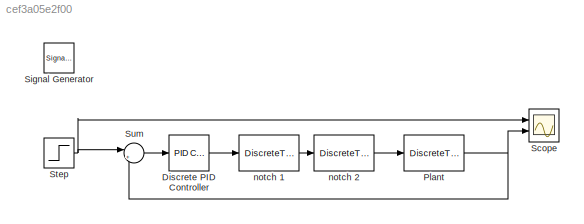
MODEL slx_cef3a05e2f00
KIND model
CONFIG AbsTol = 1e-9
CONFIG FixedStep = 0.0000001
CONFIG MaxStep = auto
CONFIG MinStep = auto
CONFIG RelTol = 1e-9
CONFIG SampleTimeConstraint = Unconstrained
CONFIG Solver = ode45
CONFIG SolverMode = Auto
CONFIG SolverName = ode45
CONFIG StartTime = 0.0
CONFIG StopTime = 0.1
BLOCK [Reference] Discrete PID Controller  REF=simulink/Continuous/PID Controller
  Ports = [1, 1]
  SourceBlock = simulink/Continuous/PID Controller
  SourceType = PID 1dof
BLOCK [DiscreteTransferFcn] Plant
  Denominator = [1 -3.555 5.045 -3.418 0.9298]
  InputPortMap = u0
  Numerator = [0.1263 1.34 1.32 0.1209]
  Ports = [1, 1]
  SampleTime = 10^-4
BLOCK [Scope] Scope
  NumInputPorts = 2
  Ports = [2]
  ScopeSpecificationString = Simulink.scopes.TimeScopeBlockCfg('CurrentConfiguration', extmgr.ConfigurationSet(extmgr.Configuration('Core','General UI',true),extmgr.Configuration('Core','Source UI',true),extmgr.Configuration('Sources','WiredSimulink',true),extmgr.Configuration('Visuals','Time Domain',true,'SerializedDisplays',{struct('MinYLimReal','-0.16595','MaxYLimReal','1.49356','YLabelReal','','MinYLimMag','0.00000','MaxY...<+1433ch>
BLOCK [SignalGenerator] Signal Generator
  Frequency = 3
  Ports = [0, 1]
  Units = rad/sec
  WaveForm = square
BLOCK [Step] Step
  SampleTime = 10^-4
  Time = 0
BLOCK [Sum] Sum
  IconShape = round
  InputSameDT = off
  Inputs = |+-
  OutDataTypeStr = Inherit: Inherit via internal rule
  Ports = [2, 1]
  SaturateOnIntegerOverflow = off
BLOCK [DiscreteTransferFcn] notch 1
  Denominator = [1 -1.877 0.8819]
  InputPortMap = u0
  Numerator = [1 -1.996 0.9995]
  Ports = [1, 1]
  SampleTime = 10^-4
BLOCK [DiscreteTransferFcn] notch 2
  Denominator = [1 -0.9397 0.1518]
  InputPortMap = u0
  Numerator = [1 -1.612 0.9963]
  Ports = [1, 1]
  SampleTime = 10^-4
LINE Discrete PID Controller:1 -> notch 1:1
NET Plant:1 -> Scope:2, Sum:2
NET Step:1 -> Scope:1, Sum:1
LINE Sum:1 -> Discrete PID Controller:1
LINE notch 1:1 -> notch 2:1
LINE notch 2:1 -> Plant:1
note: NET lines group one-source signal fan-out (src -> all destinations, sorted); 1:1 wires keep LINE
